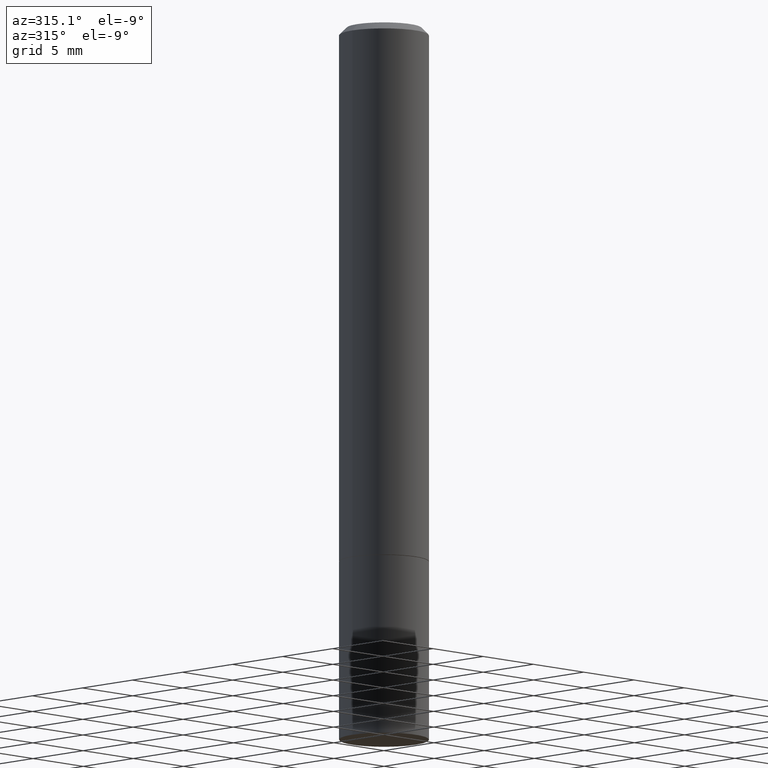
[diagram: clean part render]
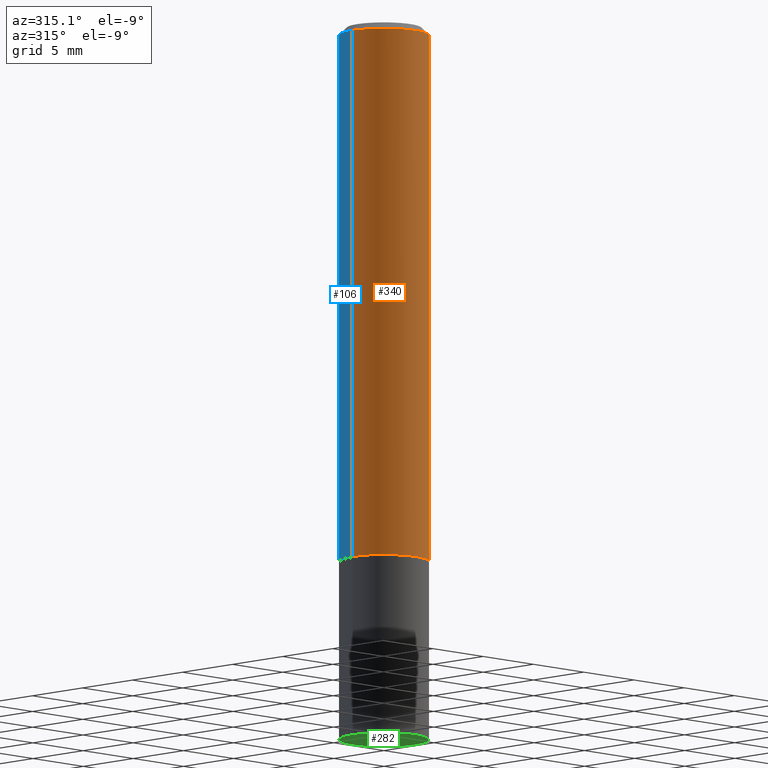
[diagram: same view with three faces highlighted in distinct colors, each labeled with its STEP entity id]
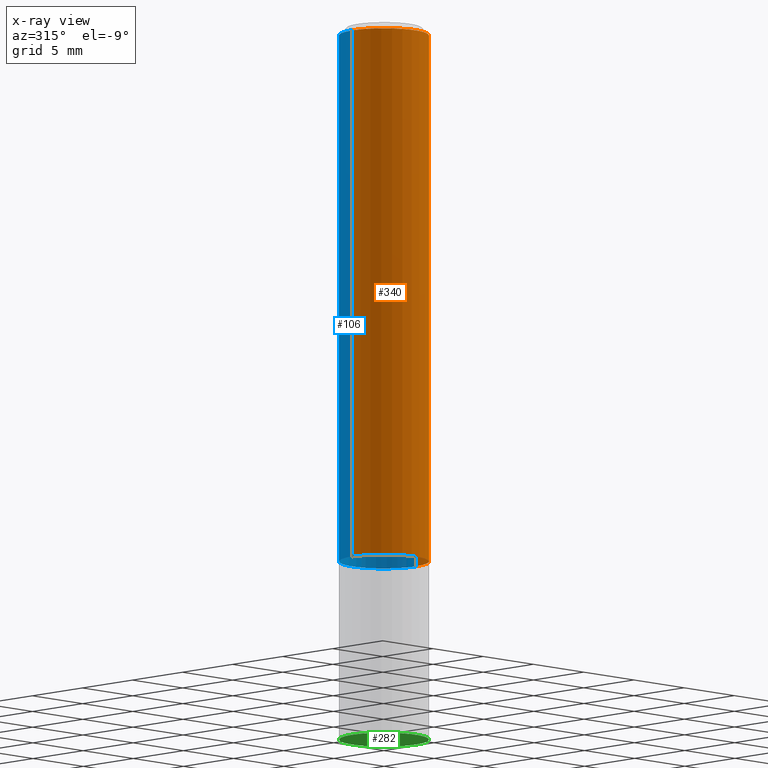
[diagram: x-ray of the same camera — body ghosted, the three highlighted faces saturated]
A machine part, auxiliary view with three faces highlighted in distinct colors.
The next image is the same camera in x-ray (body ghosted, the three faces saturated) — at least one of them is partly hidden behind the body in this view.
Their STEP definitions:

[orange] entity #340 — the highlighted cylindrical surface (partial cylindrical patch) has radius 3.175 mm, axis along (-0, 0, 1).
#3 = CARTESIAN_POINT ( 'NONE',  ( -0.1249999999999998335, 8.030407079339191532E-16, -0.02000000000000002470 ) ) ;
#23 = EDGE_CURVE ( 'NONE', #264, #149, #308, .T. ) ;
#27 = EDGE_CURVE ( 'NONE', #236, #264, #181, .T. ) ;
#31 = DIRECTION ( 'NONE',  ( 1.000000000000000000, -6.982962677686266711E-15, 0.000000000000000000 ) ) ;
#37 = CARTESIAN_POINT ( 'NONE',  ( -0.1249999999999999167, 8.881784197001246407E-16, -6.148668862818628023E-30 ) ) ;
#57 = CARTESIAN_POINT ( 'NONE',  ( 0.000000000000000000, 0.000000000000000000, 0.000000000000000000 ) ) ;
#88 = EDGE_CURVE ( 'NONE', #236, #268, #317, .T. ) ;
#90 = VECTOR ( 'NONE', #169, 39.37007874015748143 ) ;
#99 = EDGE_CURVE ( 'NONE', #268, #149, #127, .T. ) ;
#110 = FACE_OUTER_BOUND ( 'NONE', #182, .T. ) ;
#116 = CARTESIAN_POINT ( 'NONE',  ( -0.1250000000000000000, -1.763601657151241635E-15, -1.498999999999999666 ) ) ;
#124 = CARTESIAN_POINT ( 'NONE',  ( 4.890937612370279289E-31, -6.982962677686299005E-17, -0.02000000000000002470 ) ) ;
#127 = LINE ( 'NONE', #285, #90 ) ;
#136 = CYLINDRICAL_SURFACE ( 'NONE', #210, 0.1249999999999999167 ) ;
#149 = VERTEX_POINT ( 'NONE', #155 ) ;
#155 = CARTESIAN_POINT ( 'NONE',  ( 0.1249999999999998335, -9.273918764983031658E-16, -0.02000000000000002470 ) ) ;
#169 = DIRECTION ( 'NONE',  ( -2.445468806185136877E-29, 3.491481338843145188E-15, 1.000000000000000000 ) ) ;
#173 = DIRECTION ( 'NONE',  ( -2.445468806185136597E-29, 3.491481338843145583E-15, 1.000000000000000000 ) ) ;
#181 = LINE ( 'NONE', #37, #234 ) ;
#182 = EDGE_LOOP ( 'NONE', ( #360, #242, #251, #240 ) ) ;
#191 = DIRECTION ( 'NONE',  ( -2.445468806185136597E-29, 3.491481338843145583E-15, 1.000000000000000000 ) ) ;
#195 = CARTESIAN_POINT ( 'NONE',  ( 0.1250000000000000000, -6.106600861636658508E-15, -1.498999999999999666 ) ) ;
#210 = AXIS2_PLACEMENT_3D ( 'NONE', #57, #173, #256 ) ;
#226 = DIRECTION ( 'NONE',  ( 1.000000000000000000, -6.982962677686270655E-15, 0.000000000000000000 ) ) ;
#234 = VECTOR ( 'NONE', #363, 39.37007874015748143 ) ;
#236 = VERTEX_POINT ( 'NONE', #116 ) ;
#240 = ORIENTED_EDGE ( 'NONE', *, *, #23, .F. ) ;
#242 = ORIENTED_EDGE ( 'NONE', *, *, #88, .T. ) ;
#251 = ORIENTED_EDGE ( 'NONE', *, *, #99, .T. ) ;
#256 = DIRECTION ( 'NONE',  ( 1.000000000000000000, -6.982962677686266711E-15, 4.876176775795935793E-29 ) ) ;
#257 = DIRECTION ( 'NONE',  ( -2.445468806185136597E-29, 3.491481338843145583E-15, 1.000000000000000000 ) ) ;
#264 = VERTEX_POINT ( 'NONE', #3 ) ;
#268 = VERTEX_POINT ( 'NONE', #195 ) ;
#285 = CARTESIAN_POINT ( 'NONE',  ( 0.1249999999999999167, -8.728703347107827472E-16, 6.095220969744915537E-30 ) ) ;
#296 = AXIS2_PLACEMENT_3D ( 'NONE', #124, #257, #31 ) ;
#308 = CIRCLE ( 'NONE', #296, 0.1249999999999998335 ) ;
#317 = CIRCLE ( 'NONE', #361, 0.1250000000000000000 ) ;
#337 = CARTESIAN_POINT ( 'NONE',  ( 3.665757740471518732E-29, -5.233730526925875170E-15, -1.498999999999999666 ) ) ;
#340 = ADVANCED_FACE ( 'NONE', ( #110 ), #136, .T. ) ;
#360 = ORIENTED_EDGE ( 'NONE', *, *, #27, .F. ) ;
#361 = AXIS2_PLACEMENT_3D ( 'NONE', #337, #191, #226 ) ;
#363 = DIRECTION ( 'NONE',  ( -2.445468806185136877E-29, 3.491481338843145188E-15, 1.000000000000000000 ) ) ;

[blue] entity #106 — the highlighted cylindrical surface (partial cylindrical patch) has radius 3.175 mm, axis along (-0, 0, 1).
#3 = CARTESIAN_POINT ( 'NONE',  ( -0.1249999999999998335, 8.030407079339191532E-16, -0.02000000000000002470 ) ) ;
#17 = DIRECTION ( 'NONE',  ( -2.445468806185136597E-29, 3.491481338843145583E-15, 1.000000000000000000 ) ) ;
#20 = CARTESIAN_POINT ( 'NONE',  ( 4.890937612370279289E-31, -6.982962677686299005E-17, -0.02000000000000002470 ) ) ;
#21 = EDGE_CURVE ( 'NONE', #268, #236, #267, .T. ) ;
#27 = EDGE_CURVE ( 'NONE', #236, #264, #181, .T. ) ;
#36 = ORIENTED_EDGE ( 'NONE', *, *, #190, .F. ) ;
#37 = CARTESIAN_POINT ( 'NONE',  ( -0.1249999999999999167, 8.881784197001246407E-16, -6.148668862818628023E-30 ) ) ;
#44 = CARTESIAN_POINT ( 'NONE',  ( 3.665757740471518732E-29, -5.233730526925875170E-15, -1.498999999999999666 ) ) ;
#52 = DIRECTION ( 'NONE',  ( -2.445468806185136597E-29, 3.491481338843145583E-15, 1.000000000000000000 ) ) ;
#80 = DIRECTION ( 'NONE',  ( 1.000000000000000000, -6.982962677686270655E-15, 0.000000000000000000 ) ) ;
#90 = VECTOR ( 'NONE', #169, 39.37007874015748143 ) ;
#97 = ORIENTED_EDGE ( 'NONE', *, *, #99, .F. ) ;
#99 = EDGE_CURVE ( 'NONE', #268, #149, #127, .T. ) ;
#101 = AXIS2_PLACEMENT_3D ( 'NONE', #44, #52, #80 ) ;
#106 = ADVANCED_FACE ( 'NONE', ( #199 ), #232, .T. ) ;
#111 = AXIS2_PLACEMENT_3D ( 'NONE', #20, #153, #121 ) ;
#116 = CARTESIAN_POINT ( 'NONE',  ( -0.1250000000000000000, -1.763601657151241635E-15, -1.498999999999999666 ) ) ;
#121 = DIRECTION ( 'NONE',  ( 1.000000000000000000, -6.982962677686266711E-15, 0.000000000000000000 ) ) ;
#127 = LINE ( 'NONE', #285, #90 ) ;
#149 = VERTEX_POINT ( 'NONE', #155 ) ;
#153 = DIRECTION ( 'NONE',  ( -2.445468806185136597E-29, 3.491481338843145583E-15, 1.000000000000000000 ) ) ;
#155 = CARTESIAN_POINT ( 'NONE',  ( 0.1249999999999998335, -9.273918764983031658E-16, -0.02000000000000002470 ) ) ;
#169 = DIRECTION ( 'NONE',  ( -2.445468806185136877E-29, 3.491481338843145188E-15, 1.000000000000000000 ) ) ;
#181 = LINE ( 'NONE', #37, #234 ) ;
#186 = AXIS2_PLACEMENT_3D ( 'NONE', #266, #17, #241 ) ;
#190 = EDGE_CURVE ( 'NONE', #149, #264, #230, .T. ) ;
#195 = CARTESIAN_POINT ( 'NONE',  ( 0.1250000000000000000, -6.106600861636658508E-15, -1.498999999999999666 ) ) ;
#199 = FACE_OUTER_BOUND ( 'NONE', #298, .T. ) ;
#230 = CIRCLE ( 'NONE', #111, 0.1249999999999998335 ) ;
#232 = CYLINDRICAL_SURFACE ( 'NONE', #186, 0.1249999999999999167 ) ;
#234 = VECTOR ( 'NONE', #363, 39.37007874015748143 ) ;
#236 = VERTEX_POINT ( 'NONE', #116 ) ;
#241 = DIRECTION ( 'NONE',  ( 1.000000000000000000, -6.982962677686266711E-15, 4.876176775795935793E-29 ) ) ;
#264 = VERTEX_POINT ( 'NONE', #3 ) ;
#266 = CARTESIAN_POINT ( 'NONE',  ( 0.000000000000000000, 0.000000000000000000, 0.000000000000000000 ) ) ;
#267 = CIRCLE ( 'NONE', #101, 0.1250000000000000000 ) ;
#268 = VERTEX_POINT ( 'NONE', #195 ) ;
#285 = CARTESIAN_POINT ( 'NONE',  ( 0.1249999999999999167, -8.728703347107827472E-16, 6.095220969744915537E-30 ) ) ;
#298 = EDGE_LOOP ( 'NONE', ( #325, #300, #36, #97 ) ) ;
#300 = ORIENTED_EDGE ( 'NONE', *, *, #27, .T. ) ;
#325 = ORIENTED_EDGE ( 'NONE', *, *, #21, .T. ) ;
#363 = DIRECTION ( 'NONE',  ( -2.445468806185136877E-29, 3.491481338843145188E-15, 1.000000000000000000 ) ) ;

[green] entity #282 — the highlighted planar face has unit normal (0, -0, -1).
#14 = ORIENTED_EDGE ( 'NONE', *, *, #109, .F. ) ;
#16 = EDGE_LOOP ( 'NONE', ( #34, #14 ) ) ;
#32 = CARTESIAN_POINT ( 'NONE',  ( 0.1250000000000000000, -7.855833012397075293E-15, -2.000000000000000000 ) ) ;
#34 = ORIENTED_EDGE ( 'NONE', *, *, #250, .F. ) ;
#43 = DIRECTION ( 'NONE',  ( 1.000000000000000000, -6.982962677686270655E-15, 0.000000000000000000 ) ) ;
#47 = CARTESIAN_POINT ( 'NONE',  ( -0.1250000000000000000, -5.221913923275378650E-15, -2.000000000000000000 ) ) ;
#93 = CIRCLE ( 'NONE', #138, 0.1250000000000000000 ) ;
#109 = EDGE_CURVE ( 'NONE', #113, #238, #93, .T. ) ;
#113 = VERTEX_POINT ( 'NONE', #47 ) ;
#138 = AXIS2_PLACEMENT_3D ( 'NONE', #219, #272, #222 ) ;
#139 = CARTESIAN_POINT ( 'NONE',  ( 4.890937612370273194E-29, -6.982962677686291165E-15, -2.000000000000000000 ) ) ;
#165 = CARTESIAN_POINT ( 'NONE',  ( 8.728703347108321496E-16, 0.1249999999999930195, -2.000000000000000444 ) ) ;
#166 = DIRECTION ( 'NONE',  ( 2.438088387897960049E-29, -3.491481338843145188E-15, -1.000000000000000000 ) ) ;
#193 = FACE_OUTER_BOUND ( 'NONE', #16, .T. ) ;
#219 = CARTESIAN_POINT ( 'NONE',  ( 4.890937612370273194E-29, -6.982962677686291165E-15, -2.000000000000000000 ) ) ;
#222 = DIRECTION ( 'NONE',  ( 1.000000000000000000, -6.982962677686270655E-15, 0.000000000000000000 ) ) ;
#238 = VERTEX_POINT ( 'NONE', #32 ) ;
#248 = PLANE ( 'NONE',  #310 ) ;
#250 = EDGE_CURVE ( 'NONE', #238, #113, #277, .T. ) ;
#259 = DIRECTION ( 'NONE',  ( -2.445468806185136597E-29, 3.491481338843145583E-15, 1.000000000000000000 ) ) ;
#272 = DIRECTION ( 'NONE',  ( -2.445468806185136597E-29, 3.491481338843145583E-15, 1.000000000000000000 ) ) ;
#277 = CIRCLE ( 'NONE', #352, 0.1250000000000000000 ) ;
#279 = DIRECTION ( 'NONE',  ( -1.000000000000000000, 6.982962677686265922E-15, -4.876176775795935793E-29 ) ) ;
#282 = ADVANCED_FACE ( 'NONE', ( #193 ), #248, .T. ) ;
#310 = AXIS2_PLACEMENT_3D ( 'NONE', #165, #166, #279 ) ;
#352 = AXIS2_PLACEMENT_3D ( 'NONE', #139, #259, #43 ) ;